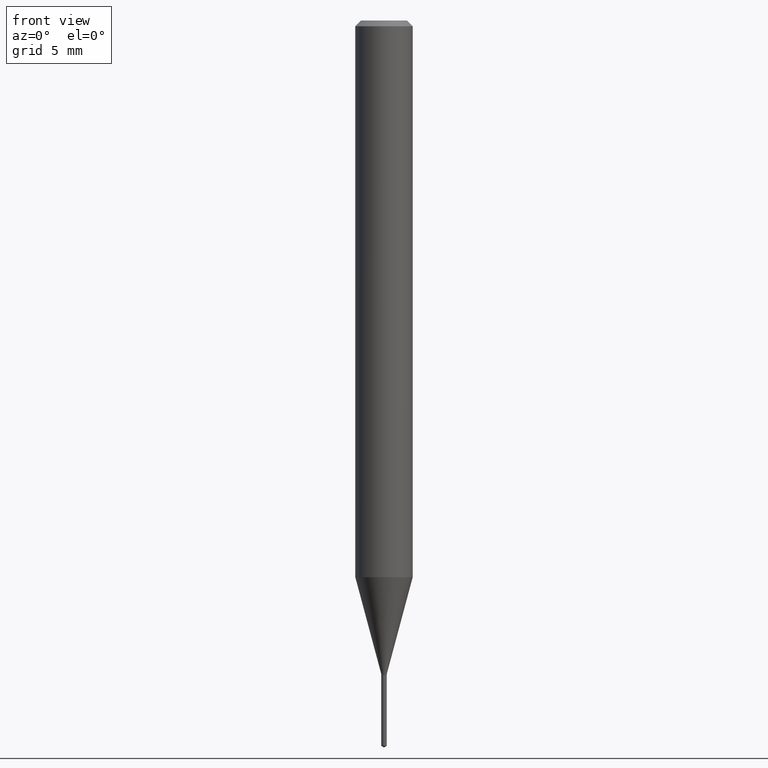
[diagram: clean part render]
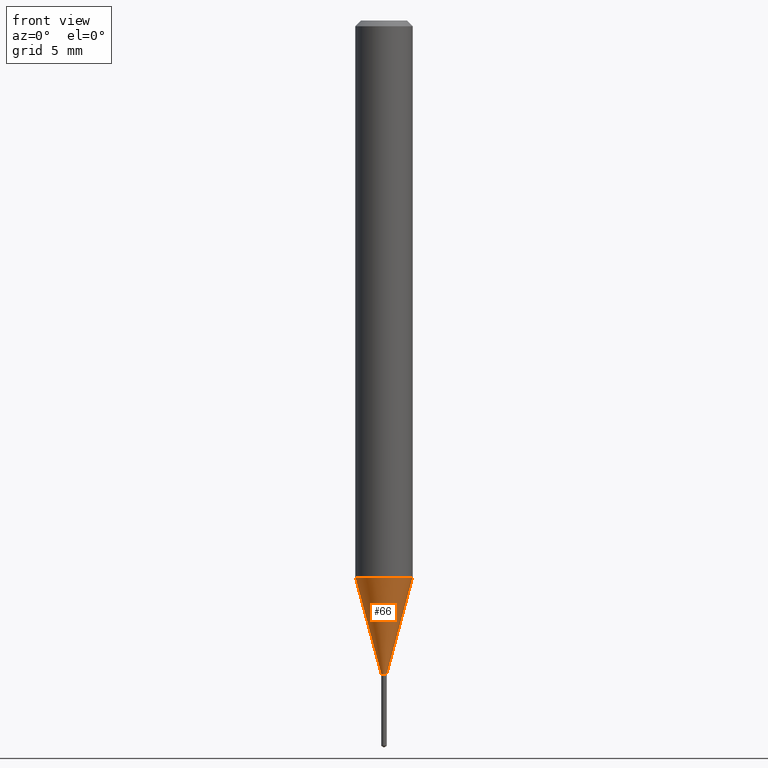
[diagram: same view with one face highlighted and labeled with its STEP entity id]
A machine part, front view. The second image highlights one B-rep face of the part: STEP entity #66.
In plain terms, the highlighted conical surface has half-angle 15 deg.
Its self-contained STEP definition (entity closure, byte-faithful):
#1 = LINE ( 'NONE', #490, #30 ) ;
#7 = CARTESIAN_POINT ( 'NONE',  ( 3.288666450557771176E-29, -4.695344104476262170E-15, -1.344799999999999773 ) ) ;
#17 = CARTESIAN_POINT ( 'NONE',  ( -0.05905000000000013710, -3.580597539234551987E-15, -1.145695089416200130 ) ) ;
#27 = DIRECTION ( 'NONE',  ( 1.000000000000000000, -6.982962677686264344E-15, 0.000000000000000000 ) ) ;
#30 = VECTOR ( 'NONE', #458, 39.37007874015747433 ) ;
#43 = DIRECTION ( 'NONE',  ( 1.000000000000000000, -6.982962677686315620E-15, 0.000000000000000000 ) ) ;
#62 = AXIS2_PLACEMENT_3D ( 'NONE', #101, #216, #27 ) ;
#66 = ADVANCED_FACE ( 'NONE', ( #168 ), #104, .T. ) ;
#82 = DIRECTION ( 'NONE',  ( -2.445468806185136597E-29, 3.491481338843145583E-15, 1.000000000000000000 ) ) ;
#94 = DIRECTION ( 'NONE',  ( 1.000000000000000000, -6.982962677686315620E-15, 0.000000000000000000 ) ) ;
#99 = AXIS2_PLACEMENT_3D ( 'NONE', #219, #82, #43 ) ;
#101 = CARTESIAN_POINT ( 'NONE',  ( 2.801761602566808784E-29, -4.000173024700892268E-15, -1.145695089416200130 ) ) ;
#104 = CONICAL_SURFACE ( 'NONE', #172, 0.005700000000000000205, 0.2617993877991500740 ) ;
#117 = CARTESIAN_POINT ( 'NONE',  ( 0.05905000000000013710, -4.412516970818267978E-15, -1.145695089416200130 ) ) ;
#121 = CIRCLE ( 'NONE', #99, 0.005700000000000000205 ) ;
#168 = FACE_OUTER_BOUND ( 'NONE', #334, .T. ) ;
#172 = AXIS2_PLACEMENT_3D ( 'NONE', #7, #290, #94 ) ;
#176 = VERTEX_POINT ( 'NONE', #389 ) ;
#191 = VECTOR ( 'NONE', #380, 39.37007874015747433 ) ;
#202 = EDGE_CURVE ( 'NONE', #441, #263, #377, .T. ) ;
#216 = DIRECTION ( 'NONE',  ( -2.445468806185136597E-29, 3.491481338843145583E-15, 1.000000000000000000 ) ) ;
#219 = CARTESIAN_POINT ( 'NONE',  ( 3.288666450557771176E-29, -4.695344104476262170E-15, -1.344799999999999773 ) ) ;
#227 = CARTESIAN_POINT ( 'NONE',  ( 0.005700000000000000205, -4.735146991739074029E-15, -1.344799999999999773 ) ) ;
#229 = ORIENTED_EDGE ( 'NONE', *, *, #249, .T. ) ;
#236 = ORIENTED_EDGE ( 'NONE', *, *, #364, .T. ) ;
#249 = EDGE_CURVE ( 'NONE', #176, #325, #121, .T. ) ;
#263 = VERTEX_POINT ( 'NONE', #117 ) ;
#290 = DIRECTION ( 'NONE',  ( -2.445468806185136597E-29, 3.491481338843145583E-15, 1.000000000000000000 ) ) ;
#298 = EDGE_CURVE ( 'NONE', #176, #441, #1, .T. ) ;
#315 = CARTESIAN_POINT ( 'NONE',  ( 0.005700000000000000205, -4.735146991739074029E-15, -1.344799999999999773 ) ) ;
#325 = VERTEX_POINT ( 'NONE', #315 ) ;
#334 = EDGE_LOOP ( 'NONE', ( #438, #229, #236, #429 ) ) ;
#364 = EDGE_CURVE ( 'NONE', #325, #263, #426, .T. ) ;
#377 = CIRCLE ( 'NONE', #62, 0.05905000000000013710 ) ;
#380 = DIRECTION ( 'NONE',  ( 0.2588190451025213501, 1.565188264969621968E-15, 0.9659258262890682012 ) ) ;
#389 = CARTESIAN_POINT ( 'NONE',  ( -0.005700000000000000205, -4.656938057341241991E-15, -1.344799999999999773 ) ) ;
#426 = LINE ( 'NONE', #227, #191 ) ;
#429 = ORIENTED_EDGE ( 'NONE', *, *, #202, .F. ) ;
#438 = ORIENTED_EDGE ( 'NONE', *, *, #298, .F. ) ;
#441 = VERTEX_POINT ( 'NONE', #17 ) ;
#458 = DIRECTION ( 'NONE',  ( -0.2588190451025213501, 5.211531920934551042E-15, 0.9659258262890682012 ) ) ;
#490 = CARTESIAN_POINT ( 'NONE',  ( -0.005700000000000000205, -4.654843168537936187E-15, -1.344799999999999773 ) ) ;